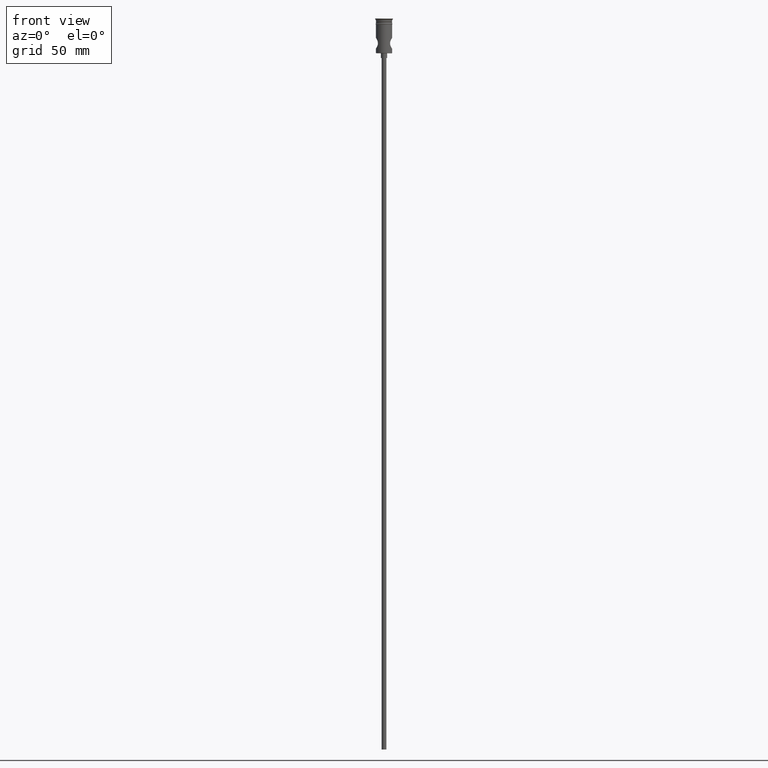
[diagram: clean part render]
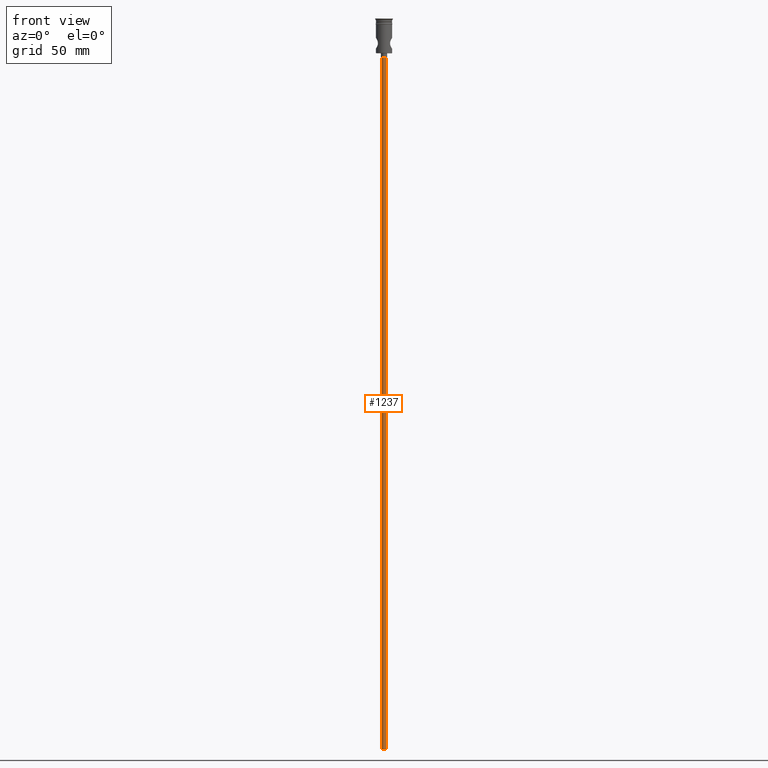
[diagram: same view with one face highlighted and labeled with its STEP entity id]
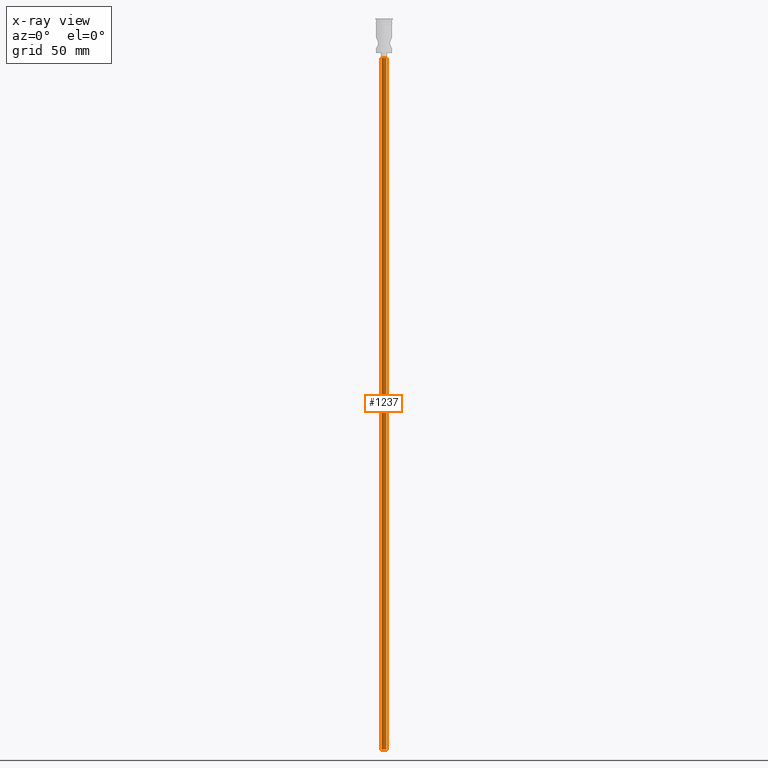
[diagram: x-ray of the same camera — body ghosted, the highlighted face saturated]
A machine part, front view. The second image highlights one B-rep face of the part: STEP entity #1237.
The next image is the same camera in x-ray: the body ghosted, the highlighted face saturated — about 0% of this face is hidden behind the body in this view.
In plain terms, the highlighted cylindrical surface (edge-blend (fillet) strip) has radius 1.5 mm, axis along (-0, -0, 1).
Its self-contained STEP definition (entity closure, byte-faithful):
#56 = CARTESIAN_POINT ( 'NONE',  ( 1.500000000000000222, 0.000000000000000000, -25.50000000000000000 ) ) ;
#74 = DIRECTION ( 'NONE',  ( -1.000000000000000000, 0.000000000000000000, 0.000000000000000000 ) ) ;
#82 = CARTESIAN_POINT ( 'NONE',  ( 0.000000000000000000, 0.000000000000000000, -472.5000000000000568 ) ) ;
#110 = CARTESIAN_POINT ( 'NONE',  ( 1.500000000000000222, 0.000000000000000000, -472.5000000000000568 ) ) ;
#198 = CARTESIAN_POINT ( 'NONE',  ( -1.500000000000000222, 1.836970198721030181E-16, -472.5000000000000568 ) ) ;
#235 = ORIENTED_EDGE ( 'NONE', *, *, #357, .T. ) ;
#357 = EDGE_CURVE ( 'NONE', #670, #1209, #593, .T. ) ;
#366 = CARTESIAN_POINT ( 'NONE',  ( -1.500000000000000222, 1.836970198721030181E-16, -472.5000000000000568 ) ) ;
#416 = DIRECTION ( 'NONE',  ( -1.000000000000000000, 0.000000000000000000, 0.000000000000000000 ) ) ;
#424 = AXIS2_PLACEMENT_3D ( 'NONE', #697, #609, #74 ) ;
#567 = VERTEX_POINT ( 'NONE', #366 ) ;
#573 = AXIS2_PLACEMENT_3D ( 'NONE', #82, #1420, #416 ) ;
#593 = CIRCLE ( 'NONE', #424, 1.500000000000000222 ) ;
#599 = VECTOR ( 'NONE', #773, 1000.000000000000000 ) ;
#601 = DIRECTION ( 'NONE',  ( -0.000000000000000000, -0.000000000000000000, 1.000000000000000000 ) ) ;
#608 = CYLINDRICAL_SURFACE ( 'NONE', #1116, 1.500000000000000222 ) ;
#609 = DIRECTION ( 'NONE',  ( 0.000000000000000000, 0.000000000000000000, -1.000000000000000000 ) ) ;
#624 = CARTESIAN_POINT ( 'NONE',  ( 1.500000000000000222, 0.000000000000000000, -472.5000000000000568 ) ) ;
#642 = CIRCLE ( 'NONE', #573, 1.500000000000000222 ) ;
#670 = VERTEX_POINT ( 'NONE', #56 ) ;
#697 = CARTESIAN_POINT ( 'NONE',  ( 0.000000000000000000, 0.000000000000000000, -25.50000000000000000 ) ) ;
#710 = LINE ( 'NONE', #198, #1064 ) ;
#720 = DIRECTION ( 'NONE',  ( -0.000000000000000000, -0.000000000000000000, 1.000000000000000000 ) ) ;
#734 = EDGE_CURVE ( 'NONE', #567, #1209, #710, .T. ) ;
#773 = DIRECTION ( 'NONE',  ( -0.000000000000000000, -0.000000000000000000, 1.000000000000000000 ) ) ;
#862 = FACE_OUTER_BOUND ( 'NONE', #1443, .T. ) ;
#955 = DIRECTION ( 'NONE',  ( 1.000000000000000000, 0.000000000000000000, 0.000000000000000000 ) ) ;
#993 = LINE ( 'NONE', #110, #599 ) ;
#1064 = VECTOR ( 'NONE', #601, 1000.000000000000000 ) ;
#1116 = AXIS2_PLACEMENT_3D ( 'NONE', #1318, #720, #955 ) ;
#1160 = ORIENTED_EDGE ( 'NONE', *, *, #1251, .F. ) ;
#1172 = ORIENTED_EDGE ( 'NONE', *, *, #1291, .T. ) ;
#1179 = VERTEX_POINT ( 'NONE', #624 ) ;
#1180 = CARTESIAN_POINT ( 'NONE',  ( -1.500000000000000222, 1.836970198721030181E-16, -25.50000000000000000 ) ) ;
#1209 = VERTEX_POINT ( 'NONE', #1180 ) ;
#1237 = ADVANCED_FACE ( 'NONE', ( #862 ), #608, .T. ) ;
#1251 = EDGE_CURVE ( 'NONE', #1179, #567, #642, .T. ) ;
#1291 = EDGE_CURVE ( 'NONE', #1179, #670, #993, .T. ) ;
#1317 = ORIENTED_EDGE ( 'NONE', *, *, #734, .F. ) ;
#1318 = CARTESIAN_POINT ( 'NONE',  ( 0.000000000000000000, 0.000000000000000000, -472.5000000000000568 ) ) ;
#1420 = DIRECTION ( 'NONE',  ( 0.000000000000000000, 0.000000000000000000, -1.000000000000000000 ) ) ;
#1443 = EDGE_LOOP ( 'NONE', ( #1317, #1160, #1172, #235 ) ) ;